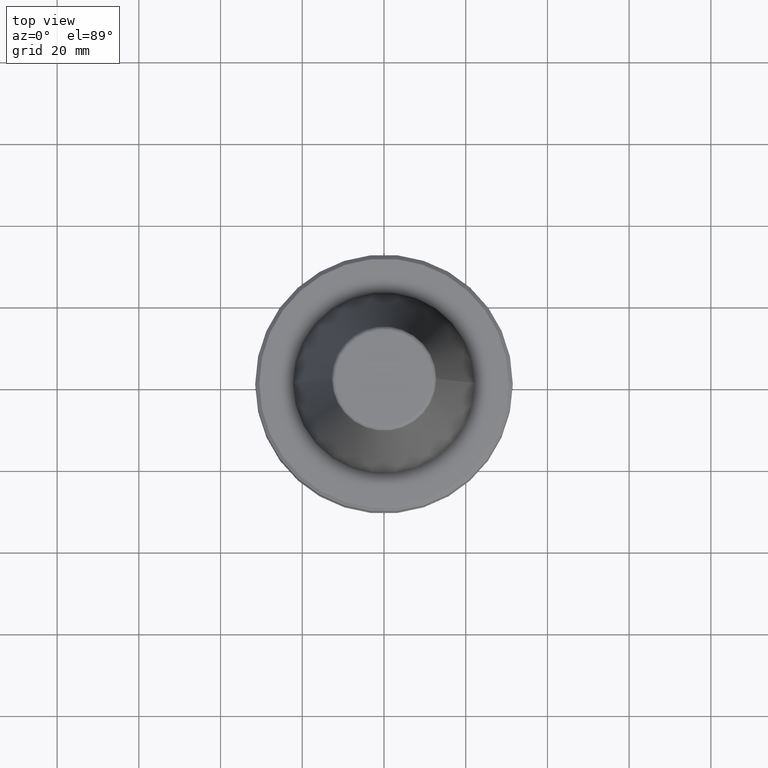
[diagram: clean part render]
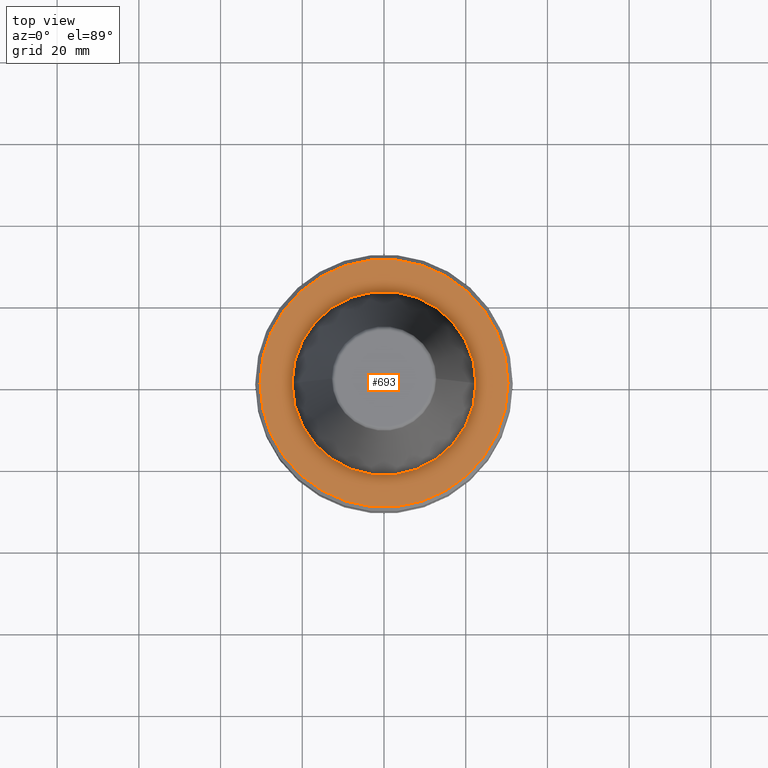
[diagram: same view with one face highlighted and labeled with its STEP entity id]
A machine part, top view. The second image highlights one B-rep face of the part: STEP entity #693.
In plain terms, the highlighted planar face has unit normal (0, -0, 1).
Its self-contained STEP definition (entity closure, byte-faithful):
#31 = CARTESIAN_POINT ( 'NONE',  ( 0.0000000000000000000, 0.0000000000000000000, -2.000000000000001800 ) ) ;
#61 = EDGE_LOOP ( 'NONE', ( #250, #436 ) ) ;
#79 = CIRCLE ( 'NONE', #1038, 30.33431457505075800 ) ;
#82 = AXIS2_PLACEMENT_3D ( 'NONE', #92, #733, #209 ) ;
#83 = ORIENTED_EDGE ( 'NONE', *, *, #618, .T. ) ;
#92 = CARTESIAN_POINT ( 'NONE',  ( 0.0000000000000000000, 0.0000000000000000000, -2.000000000000001800 ) ) ;
#100 = CIRCLE ( 'NONE', #1193, 30.33431457505075800 ) ;
#148 = DIRECTION ( 'NONE',  ( 1.000000000000000000, 0.0000000000000000000, 0.0000000000000000000 ) ) ;
#205 = VERTEX_POINT ( 'NONE', #831 ) ;
#209 = DIRECTION ( 'NONE',  ( 1.000000000000000000, 0.0000000000000000000, 0.0000000000000000000 ) ) ;
#250 = ORIENTED_EDGE ( 'NONE', *, *, #658, .F. ) ;
#289 = CARTESIAN_POINT ( 'NONE',  ( 0.0000000000000000000, 0.0000000000000000000, -2.000000000000002700 ) ) ;
#295 = CARTESIAN_POINT ( 'NONE',  ( 22.50000000000000000, 0.0000000000000000000, -2.000000000000001300 ) ) ;
#312 = VERTEX_POINT ( 'NONE', #921 ) ;
#325 = CARTESIAN_POINT ( 'NONE',  ( 0.0000000000000000000, 0.0000000000000000000, -2.000000000000001800 ) ) ;
#330 = EDGE_CURVE ( 'NONE', #1025, #312, #100, .T. ) ;
#380 = DIRECTION ( 'NONE',  ( 1.000000000000000000, 0.0000000000000000000, 0.0000000000000000000 ) ) ;
#420 = DIRECTION ( 'NONE',  ( 1.000000000000000000, 0.0000000000000000000, 0.0000000000000000000 ) ) ;
#436 = ORIENTED_EDGE ( 'NONE', *, *, #713, .F. ) ;
#452 = DIRECTION ( 'NONE',  ( -0.0000000000000000000, -0.0000000000000000000, 1.000000000000000000 ) ) ;
#466 = FACE_OUTER_BOUND ( 'NONE', #708, .T. ) ;
#483 = AXIS2_PLACEMENT_3D ( 'NONE', #31, #688, #148 ) ;
#523 = CIRCLE ( 'NONE', #483, 22.50000000000000000 ) ;
#576 = CARTESIAN_POINT ( 'NONE',  ( 30.33431457505075800, 0.0000000000000000000, -2.000000000000001800 ) ) ;
#618 = EDGE_CURVE ( 'NONE', #312, #1025, #79, .T. ) ;
#639 = ORIENTED_EDGE ( 'NONE', *, *, #330, .T. ) ;
#658 = EDGE_CURVE ( 'NONE', #904, #205, #523, .T. ) ;
#688 = DIRECTION ( 'NONE',  ( -0.0000000000000000000, -0.0000000000000000000, 1.000000000000000000 ) ) ;
#693 = ADVANCED_FACE ( 'NONE', ( #466, #1205 ), #784, .T. ) ;
#708 = EDGE_LOOP ( 'NONE', ( #639, #83 ) ) ;
#713 = EDGE_CURVE ( 'NONE', #205, #904, #920, .T. ) ;
#733 = DIRECTION ( 'NONE',  ( -0.0000000000000000000, -0.0000000000000000000, 1.000000000000000000 ) ) ;
#784 = PLANE ( 'NONE',  #866 ) ;
#831 = CARTESIAN_POINT ( 'NONE',  ( -22.50000000000000000, 2.755455298081544800E-015, -2.000000000000001300 ) ) ;
#866 = AXIS2_PLACEMENT_3D ( 'NONE', #289, #926, #380 ) ;
#904 = VERTEX_POINT ( 'NONE', #295 ) ;
#920 = CIRCLE ( 'NONE', #82, 22.50000000000000000 ) ;
#921 = CARTESIAN_POINT ( 'NONE',  ( -30.33431457505075800, 3.732201245991191100E-015, -2.000000000000001800 ) ) ;
#926 = DIRECTION ( 'NONE',  ( 0.0000000000000000000, -0.0000000000000000000, 1.000000000000000000 ) ) ;
#955 = DIRECTION ( 'NONE',  ( -0.0000000000000000000, -0.0000000000000000000, 1.000000000000000000 ) ) ;
#1025 = VERTEX_POINT ( 'NONE', #576 ) ;
#1032 = CARTESIAN_POINT ( 'NONE',  ( 0.0000000000000000000, 0.0000000000000000000, -2.000000000000001800 ) ) ;
#1038 = AXIS2_PLACEMENT_3D ( 'NONE', #325, #955, #420 ) ;
#1118 = DIRECTION ( 'NONE',  ( 1.000000000000000000, 0.0000000000000000000, 0.0000000000000000000 ) ) ;
#1193 = AXIS2_PLACEMENT_3D ( 'NONE', #1032, #452, #1118 ) ;
#1205 = FACE_BOUND ( 'NONE', #61, .T. ) ;